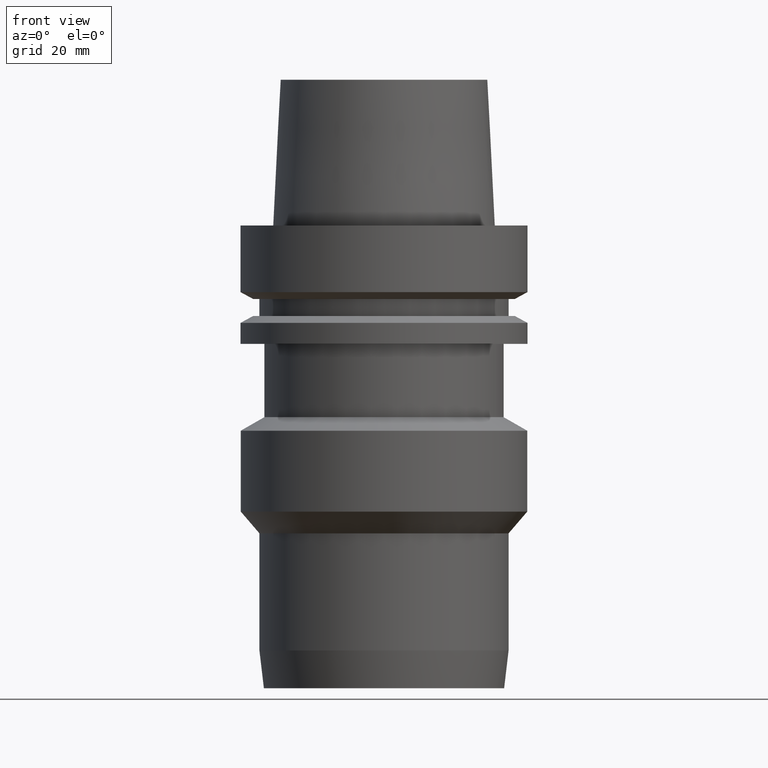
[diagram: clean part render]
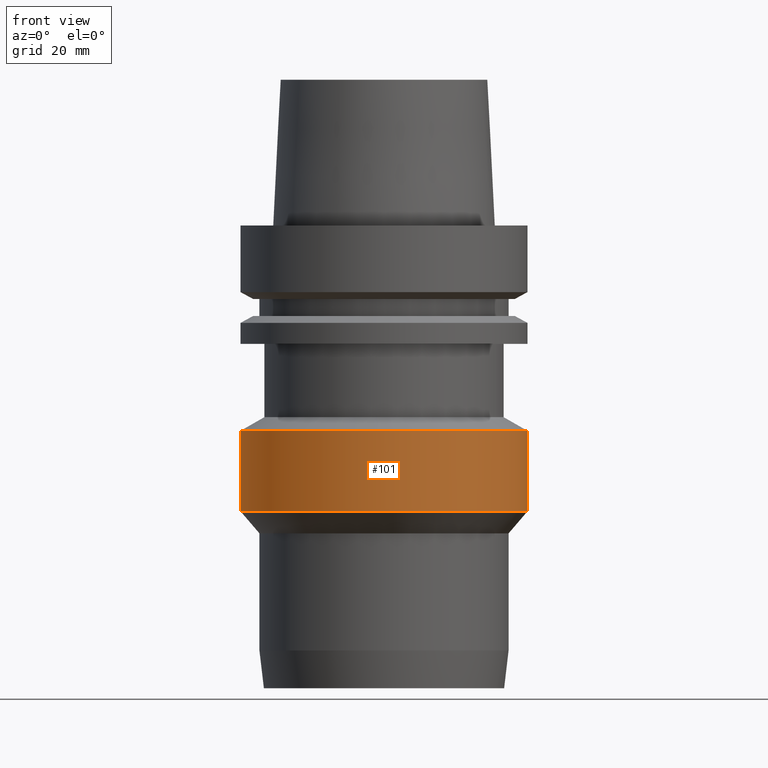
[diagram: same view with one face highlighted and labeled with its STEP entity id]
A machine part, front view. The second image highlights one B-rep face of the part: STEP entity #101.
In plain terms, the highlighted cylindrical surface (bore or boss wall) has radius 31.45 mm, axis along (-0, -0, 1).
Its self-contained STEP definition (entity closure, byte-faithful):
#101=ADVANCED_FACE('Unnamed[1]',(#229,#230),#231,.T.);
#140=EDGE_CURVE('Unnamed[1]',#292,#292,#293,.T.);
#144=EDGE_CURVE('Unnamed[1]',#298,#298,#299,.T.);
#229=FACE_BOUND('',#393,.T.);
#230=FACE_BOUND('',#394,.T.);
#231=CYLINDRICAL_SURFACE('',#395,31.45);
#292=VERTEX_POINT('',#471);
#293=CIRCLE('',#472,31.45);
#298=VERTEX_POINT('',#479);
#299=CIRCLE('',#480,31.45);
#393=EDGE_LOOP('',(#559));
#394=EDGE_LOOP('',(#560));
#395=AXIS2_PLACEMENT_3D('',#561,#562,#563);
#471=CARTESIAN_POINT('',(2.75859981670721E-015,31.45,-45.0513538863264));
#472=AXIS2_PLACEMENT_3D('',#632,#633,#634);
#479=CARTESIAN_POINT('',(3.84593837303515E-015,31.45,-62.8089401076758));
#480=AXIS2_PLACEMENT_3D('',#638,#639,#640);
#559=ORIENTED_EDGE('',*,*,#140,.F.);
#560=ORIENTED_EDGE('',*,*,#144,.T.);
#561=CARTESIAN_POINT('',(3.30226909487118E-015,6.60453818974236E-015,-53.9301469970011));
#562=DIRECTION('',(-6.12323399573677E-017,-1.22464679914735E-016,1.0));
#563=DIRECTION('',(-1.23259516440783E-032,1.0,1.22464679914735E-016));
#632=CARTESIAN_POINT('',(2.75859981670721E-015,5.51719963341443E-015,-45.0513538863264));
#633=DIRECTION('',(-6.12323399573677E-017,-1.22464679914735E-016,1.0));
#634=DIRECTION('',(-1.23259516440783E-032,1.0,1.22464679914735E-016));
#638=CARTESIAN_POINT('',(3.84593837303515E-015,7.69187674607029E-015,-62.8089401076758));
#639=DIRECTION('',(-6.12323399573677E-017,-1.22464679914735E-016,1.0));
#640=DIRECTION('',(-1.23259516440783E-032,1.0,1.22464679914735E-016));